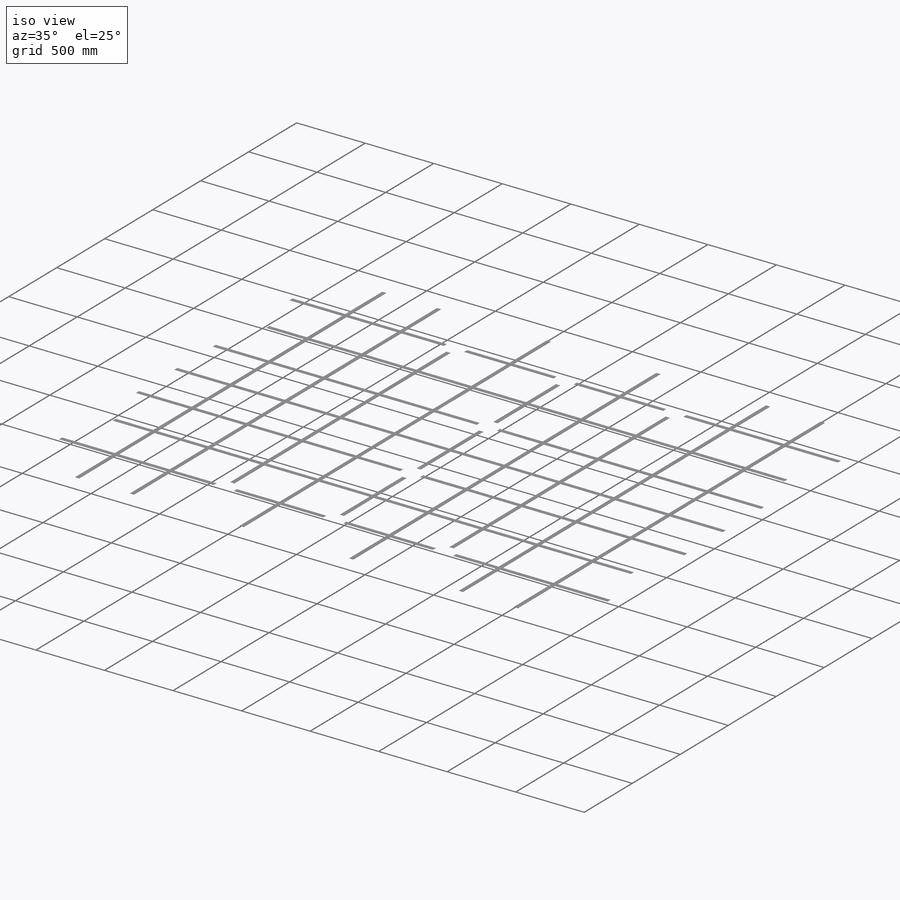
[diagram: iso view]
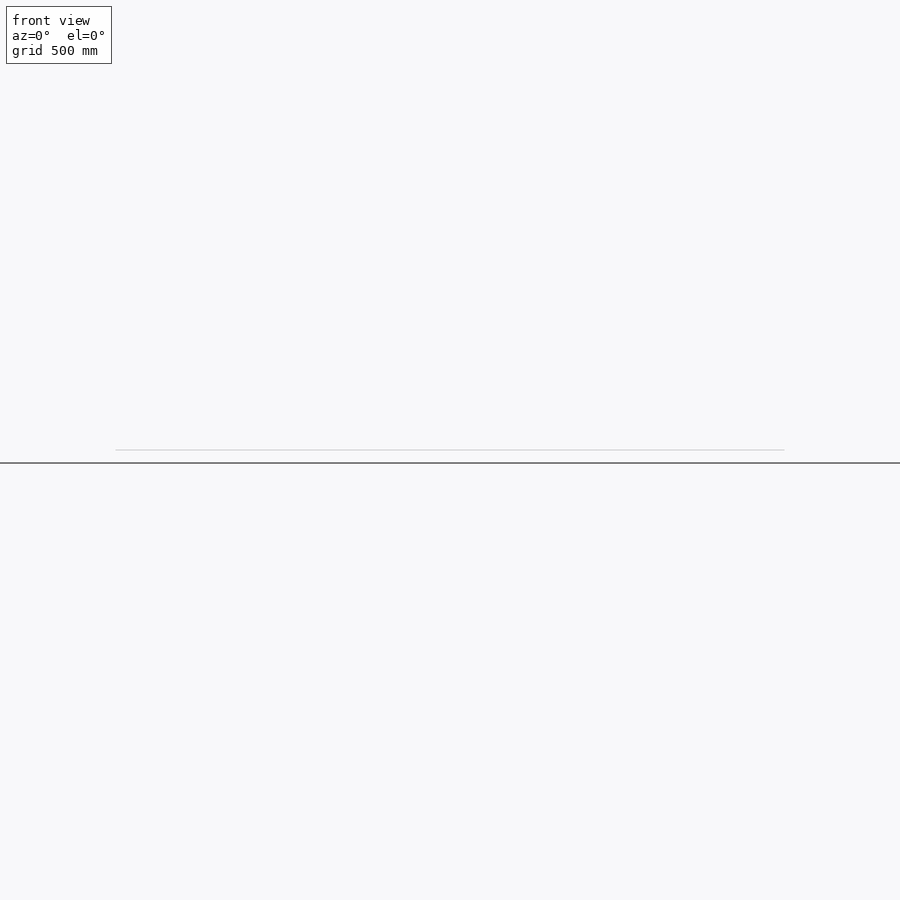
[diagram: front view]
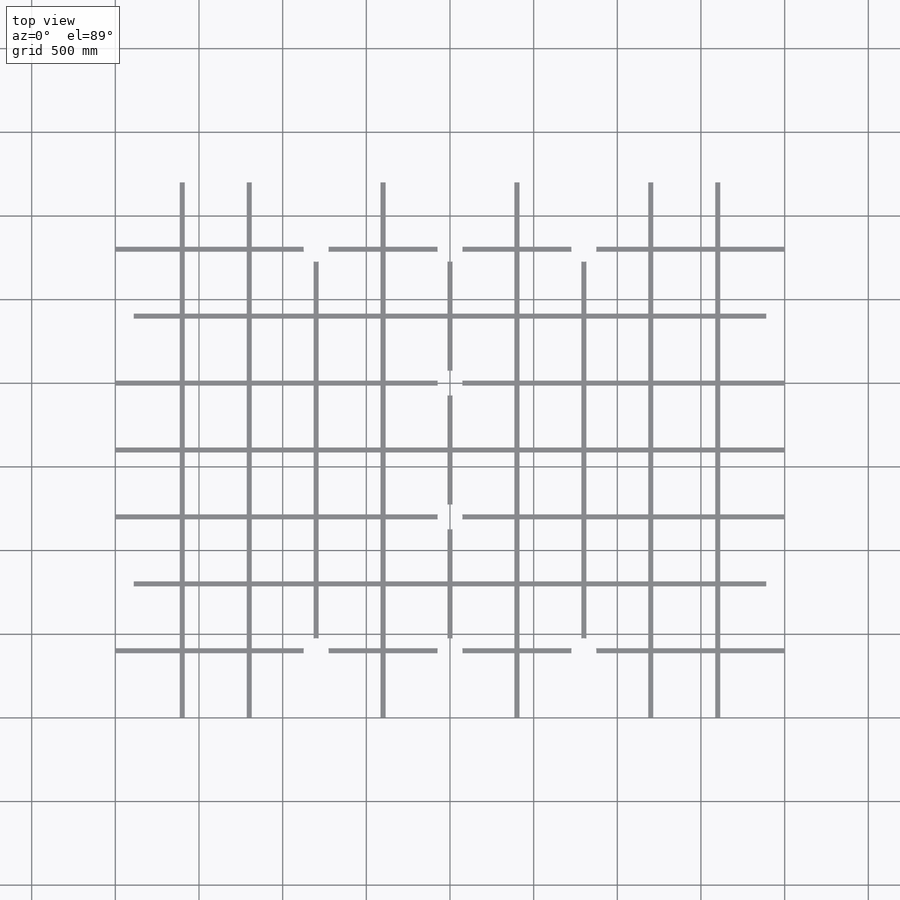
[diagram: top view]
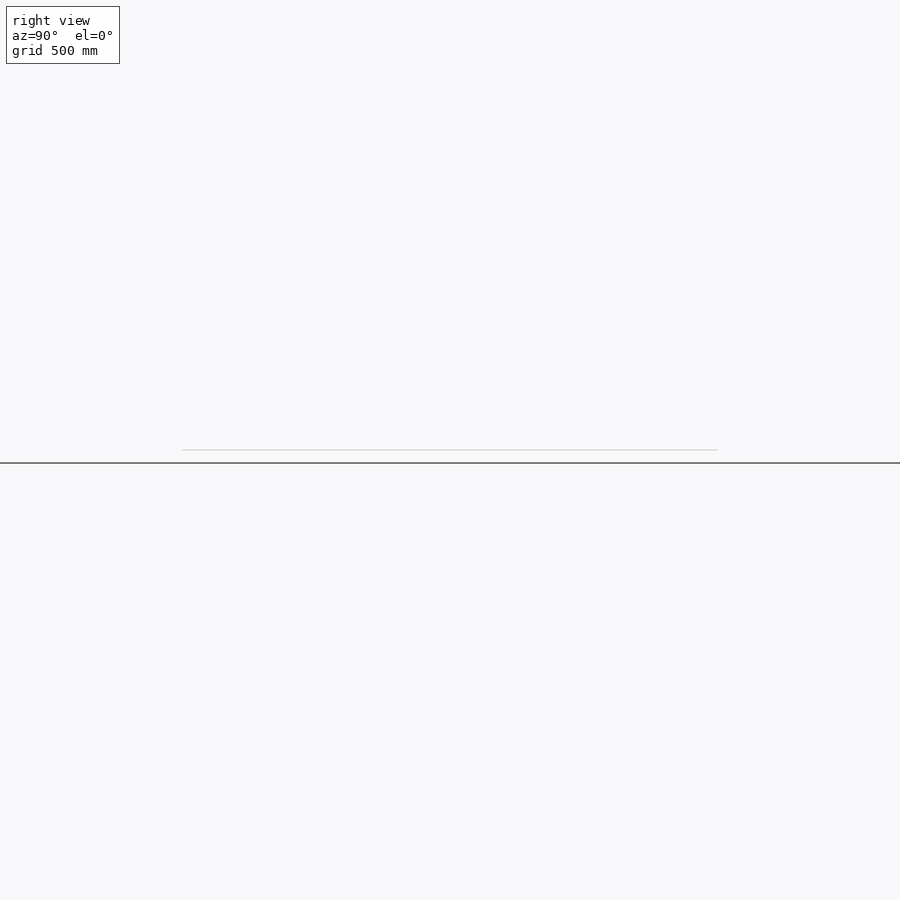
[diagram: right view]
SOLIDWORKS PART (.sldprt)
format: sldprt  version: not decoded by parser v0  size: 865,792 bytes
history: native  units: mm
features: sketch x6, cut_extrude x4, plane x3, extrude x2, material x1 (+8 scaffold rows collapsed)
feature tree (24):
  scaffold x8  (default folders/planes/origin — collapsed)
  material  "材质 <未指定>"
  plane  "前视基准面"
  plane  "上视基准面"
  plane  "右视基准面"
  sketch  "草图1"  dims[D1=3200.0mm D2=4000.0mm]
  extrude  "凸台-拉伸1"  Depth=1mm
  sketch  "草图2"  dims[D1=15.0mm D2=15.0mm D3=200.0mm D4=10.0 D5=8.0]
  cut_extrude  "切除-拉伸2"  [1 undecoded]
  sketch  "草图4"
  cut_extrude  "切除-拉伸4"  [1 undecoded]
  sketch  "草图5"  dims[D1=8.0 D2=2.0 D3=2.0 D4=6.0]
  cut_extrude  "切除-拉伸5"  [1 undecoded]
  sketch  "草图6"  dims[c1.D4=~293.614537mm c1.D5=~293.614537mm c1.D6=150.0mm c1.D1=110.0mm c1.D2=400.0mm c1.D3=150.0mm c2.D4=1200.0mm c2.D5=2000.0mm]
  cut_extrude  "切除-拉伸6"  [1 undecoded]
  sketch  "草图7"  dims[c1.D1=20.0mm c1.D5=30.0mm c1.D6=30.0mm c1.D8=30.0mm c1.D9=30.0mm c1.D10=30.0mm c1.D12=30.0mm c1.D13=30.0mm c1.D2=15.0mm c1.D3=15.0mm c1.D4=15.0mm c2.D5=15.0mm c2.D6=15.0mm c2.D7=15.0mm c2.D8=15.0mm c2.D9=15.0mm c2.D10=15.0mm c2.D11=15.0mm c2.D12=15.0mm c2.D13=15.0mm]
  extrude  "凸台-拉伸2"  Depth=0.1mm
decode coverage: 7 of 12 modeling features carry decoded parameters
note: ~ marks probable driven/reference dimensions
note: 4 parameter values undecoded
summary: no parameter record found for 4 features
note: suppression state not decoded; provenance and decode notes live in map.json
